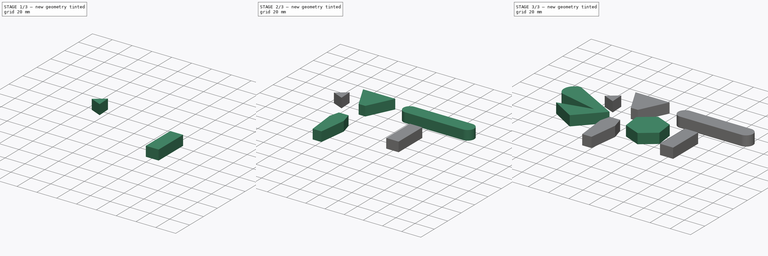
[diagram: build sequence overview — one tinted view per stage of 3, left to right]
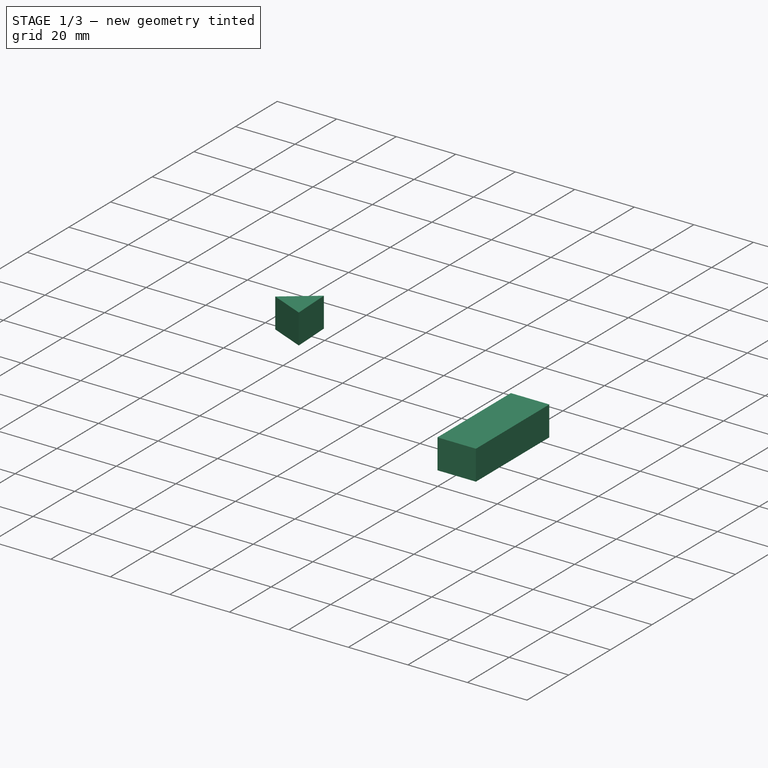
[diagram: stage 1 of 3 — iso view after this stage's code; geometry added in this stage tinted green]
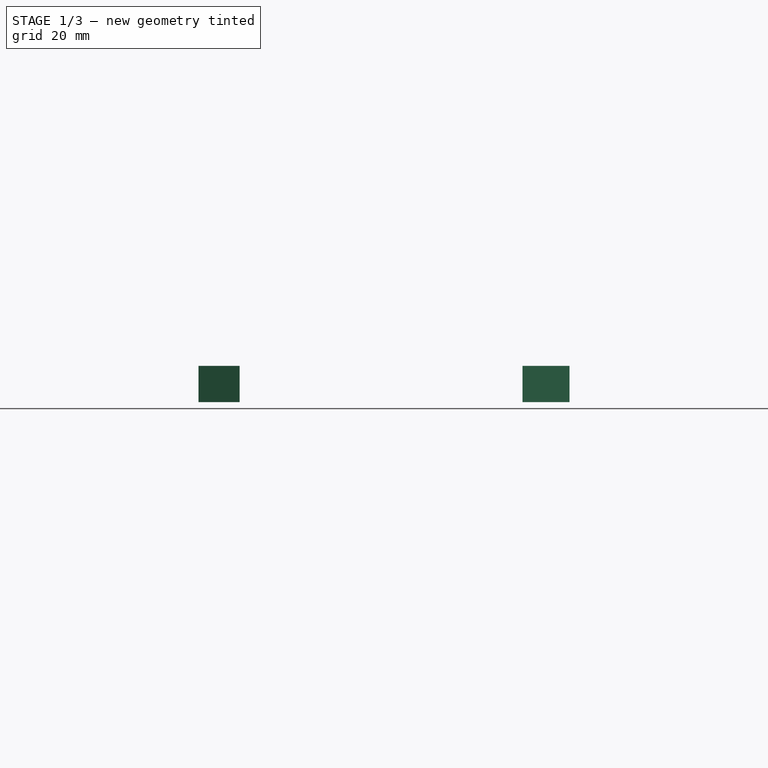
[diagram: stage 1 of 3 — front view after this stage's code; geometry added in this stage tinted green]
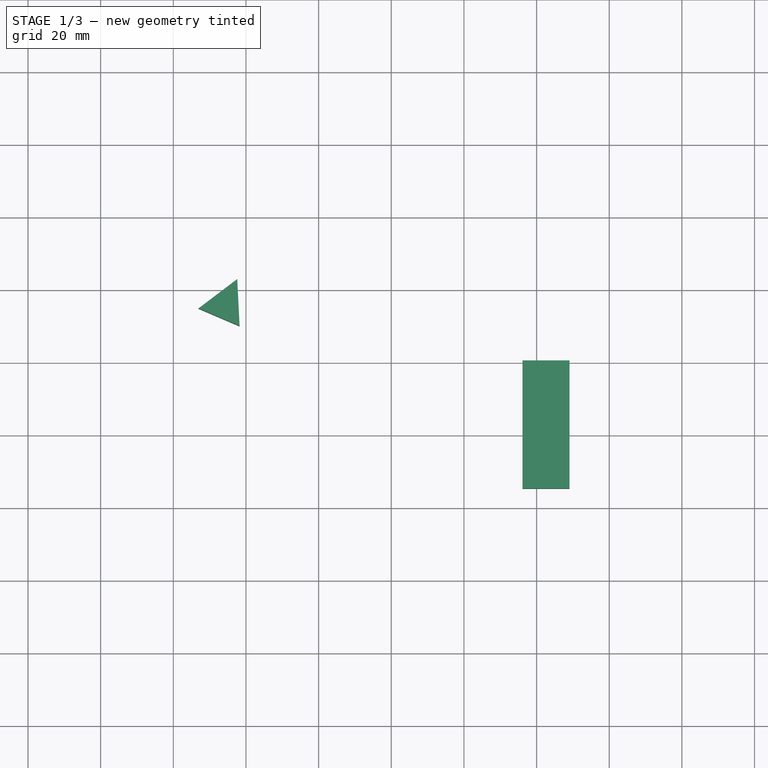
[diagram: stage 1 of 3 — top view after this stage's code; geometry added in this stage tinted green]
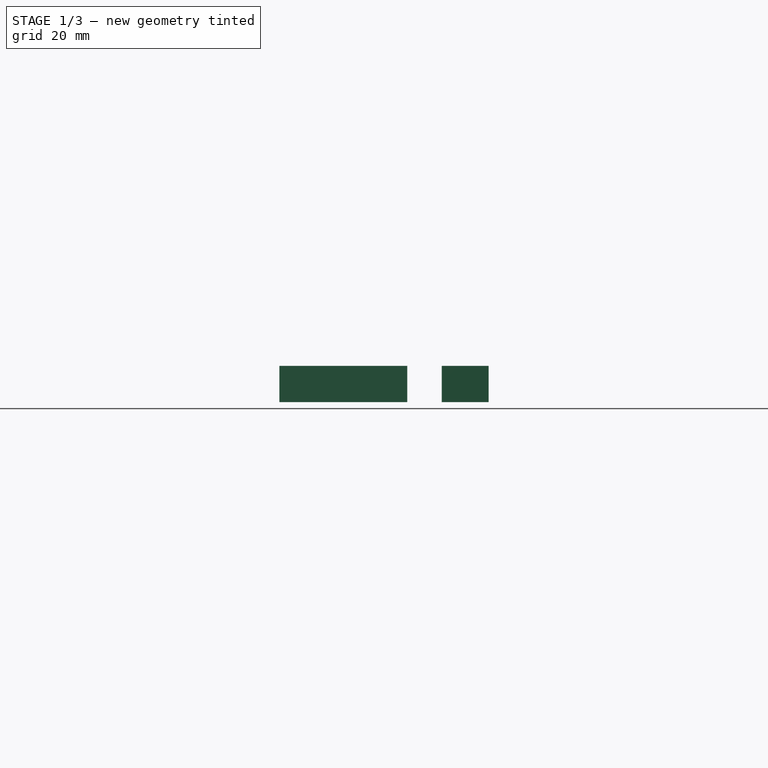
[diagram: stage 1 of 3 — right view after this stage's code; geometry added in this stage tinted green]
FCSTD DOCUMENT  (FreeCAD 0.19R16345 (Git))
Label: Nest_0
License: CreativeCommons Attribution
LicenseURL: http://creativecommons.org/licenses/by/4.0/
objects: Sketcher::SketchObject×7, PartDesign::Pad×7, PartDesign::Body×7
note: 28 computed .brp shape members not serialized (recipe doc carries the construction recipe); baked Part::Feature solids carry a one-line shape summary decoded from their .brp

FEATURE [PartDesign::Body] Body003
  Group = -> [Sketch004,Pad004]
  Origin = -> Origin003
  Tip = -> Pad004
FEATURE [Sketcher::SketchObject] Sketch005
  MapMode = 5
  Support = -> [XY_Plane005]
  sketch-geometry (4):
    g0: LineSegment StartX=56.1333 StartY=20.5902 StartZ=0 EndX=69.0582 EndY=20.5902 EndZ=0
    g1: LineSegment StartX=69.0582 StartY=20.5902 StartZ=0 EndX=69.0582 EndY=-14.6302 EndZ=0
    g2: LineSegment StartX=69.0582 StartY=-14.6302 StartZ=0 EndX=56.1333 EndY=-14.6302 EndZ=0
    g3: LineSegment StartX=56.1333 StartY=-14.6302 StartZ=0 EndX=56.1333 EndY=20.5902 EndZ=0
  constraints (8):
    c: Coincident(g0,g1)
    c: Coincident(g1,g2)
    c: Coincident(g2,g3)
    c: Coincident(g3,g0)
    c: Horizontal(g0)
    c: Horizontal(g2)
    c: Vertical(g1)
    c: Vertical(g3)
FEATURE [PartDesign::Pad] Pad005
  Length = 10
  Length2 = 100
  Profile = -> Sketch005
  Type = 0
FEATURE [PartDesign::Body] Body005
  Group = -> [Sketch005,Pad005]
  Origin = -> Origin005
  Tip = -> Pad005
FEATURE [Sketcher::SketchObject] Sketch006
  MapMode = 5
  Support = -> [XY_Plane006]
  sketch-geometry (3):
    g0: LineSegment StartX=-33.0631 StartY=34.9198 StartZ=0 EndX=-22.4 EndY=42.9979 EndZ=0
    g1: LineSegment StartX=-22.4 StartY=42.9979 StartZ=0 EndX=-21.7538 EndY=30.073 EndZ=0
    g2: LineSegment StartX=-21.7538 StartY=30.073 StartZ=0 EndX=-33.0631 EndY=34.9198 EndZ=0
  constraints (3):
    c: Coincident(g0,g1)
    c: Coincident(g1,g2)
    c: Coincident(g2,g0)
FEATURE [PartDesign::Pad] Pad006
  Length = 10
  Length2 = 100
  Profile = -> Sketch006
  Type = 0
FEATURE [PartDesign::Body] Body006
  Group = -> [Sketch006,Pad006]
  Origin = -> Origin006
  Tip = -> Pad006
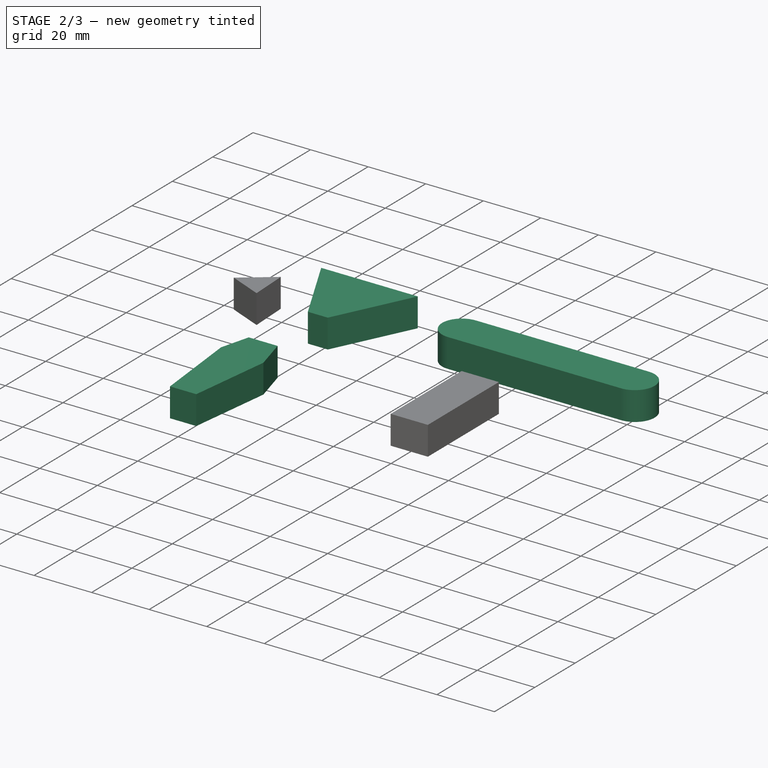
[diagram: stage 2 of 3 — iso view after this stage's code; geometry added in this stage tinted green]
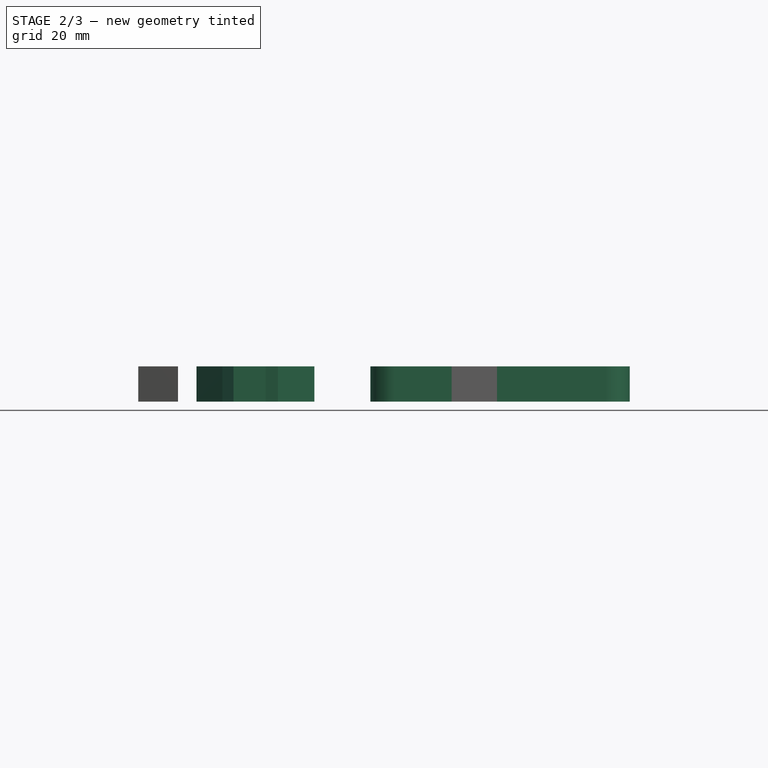
[diagram: stage 2 of 3 — front view after this stage's code; geometry added in this stage tinted green]
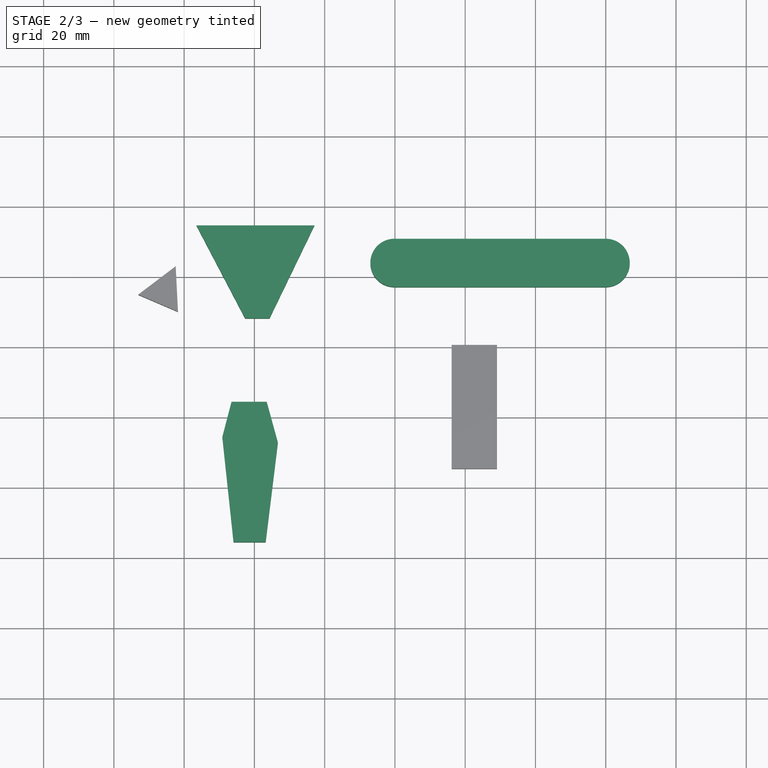
[diagram: stage 2 of 3 — top view after this stage's code; geometry added in this stage tinted green]
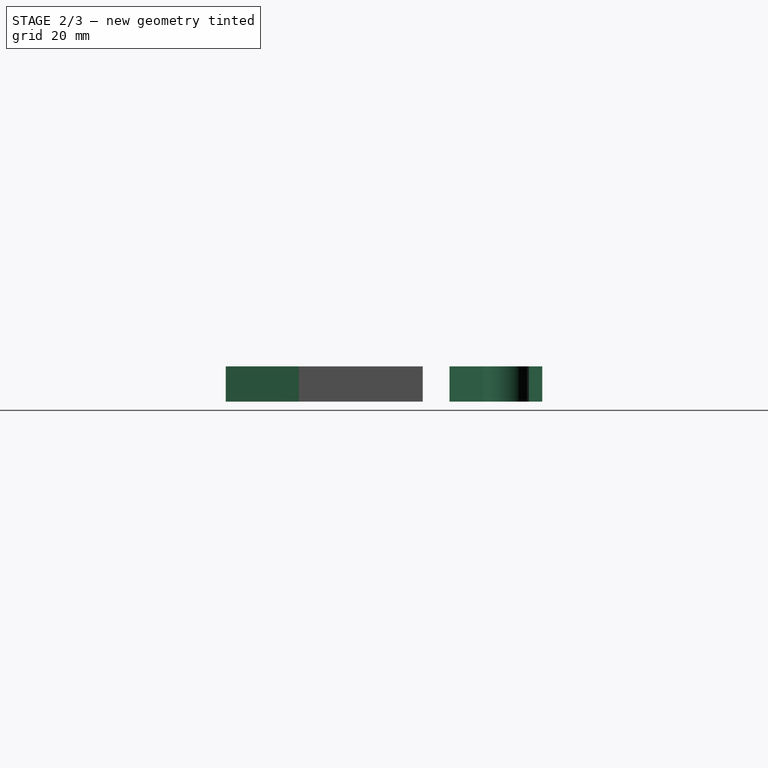
[diagram: stage 2 of 3 — right view after this stage's code; geometry added in this stage tinted green]
FEATURE [PartDesign::Body] Body001
  Group = -> [Sketch001,Pad001]
  Origin = -> Origin001
  Tip = -> Pad001
FEATURE [Sketcher::SketchObject] Sketch002
  MapMode = 5
  Support = -> [XY_Plane002]
  sketch-geometry (4):
    g0: LineSegment StartX=-16.4861 StartY=54.6064 StartZ=0 EndX=-2.62398 EndY=28.1817 EndZ=0
    g1: LineSegment StartX=-2.62398 StartY=28.1817 StartZ=0 EndX=4.30707 EndY=28.1817 EndZ=0
    g2: LineSegment StartX=4.30707 StartY=28.1817 StartZ=0 EndX=17.0862 EndY=54.6064 EndZ=0
    g3: LineSegment StartX=17.0862 StartY=54.6064 StartZ=0 EndX=-16.4861 EndY=54.6064 EndZ=0
  constraints (6):
    c: Coincident(g0,g1)
    c: Horizontal(g1)
    c: Coincident(g1,g2)
    c: Coincident(g2,g3)
    c: Coincident(g3,g0)
    c: Horizontal(g3)
FEATURE [PartDesign::Pad] Pad002
  Length = 10
  Length2 = 100
  Profile = -> Sketch002
  Type = 0
FEATURE [PartDesign::Body] Body002
  Group = -> [Sketch002,Pad002]
  Origin = -> Origin002
  Tip = -> Pad002
FEATURE [Sketcher::SketchObject] Sketch003
  MapMode = 5
  Support = -> [XY_Plane004]
  sketch-geometry (4):
    g0: ArcOfCircle CenterX=39.8673 CenterY=43.9558 CenterZ=0 NormalX=0 NormalY=0 NormalZ=1 AngleXU=0 Radius=6.86841 StartAngle=1.5708 EndAngle=4.71239
    g1: ArcOfCircle CenterX=99.9753 CenterY=43.9558 CenterZ=0 NormalX=0 NormalY=0 NormalZ=1 AngleXU=0 Radius=6.86841 StartAngle=4.71239 EndAngle=7.85398
    g2: LineSegment StartX=39.8673 StartY=37.0874 StartZ=0 EndX=99.9753 EndY=37.0874 EndZ=0
    g3: LineSegment StartX=39.8673 StartY=50.8242 StartZ=0 EndX=99.9753 EndY=50.8242 EndZ=0
  constraints (6):
    c: Tangent(g0,g3) = 1.5708
    c: Tangent(g0,g2) = -1.5708
    c: Tangent(g2,g1) = -1.5708
    c: Tangent(g3,g1) = 1.5708
    c: Horizontal(g2)
    c: Equal(g0,g1)
FEATURE [PartDesign::Pad] Pad003
  Length = 10
  Length2 = 100
  Profile = -> Sketch003
  Type = 0
FEATURE [PartDesign::Body] Body004
  Group = -> [Sketch003,Pad003]
  Origin = -> Origin004
  Tip = -> Pad003
FEATURE [Sketcher::SketchObject] Sketch004
  MapMode = 5
  Support = -> [XY_Plane003]
  sketch-geometry (6):
    g0: LineSegment StartX=-6.51538 StartY=4.41575 StartZ=0 EndX=3.50262 EndY=4.41575 EndZ=0
    g1: LineSegment StartX=3.50262 StartY=4.41575 StartZ=0 EndX=6.69676 EndY=-7.19932 EndZ=0
    g2: LineSegment StartX=6.69676 StartY=-7.19932 StartZ=0 EndX=3.21224 EndY=-35.5111 EndZ=0
    g3: LineSegment StartX=3.21224 StartY=-35.5111 StartZ=0 EndX=-5.93463 EndY=-35.5111 EndZ=0
    g4: LineSegment StartX=-5.93463 StartY=-35.5111 StartZ=0 EndX=-9.12877 EndY=-5.60224 EndZ=0
    g5: LineSegment StartX=-9.12877 StartY=-5.60224 StartZ=0 EndX=-6.51538 EndY=4.41575 EndZ=0
  constraints (8):
    c: Horizontal(g0)
    c: Coincident(g0,g1)
    c: Coincident(g1,g2)
    c: Coincident(g2,g3)
    c: Horizontal(g3)
    c: Coincident(g3,g4)
    c: Coincident(g4,g5)
    c: Coincident(g5,g0)
FEATURE [PartDesign::Pad] Pad004
  Length = 10
  Length2 = 100
  Profile = -> Sketch004
  Type = 0
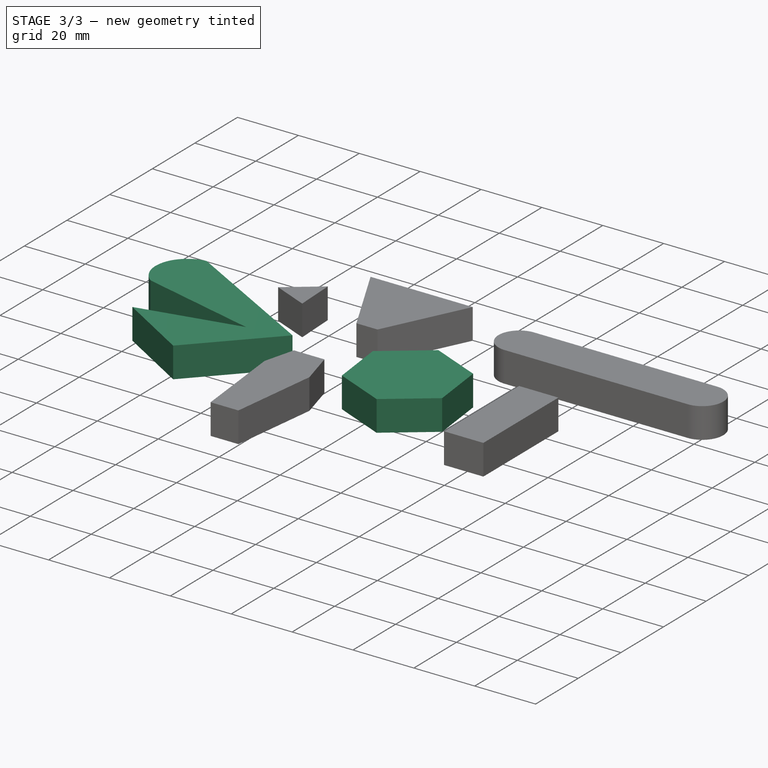
[diagram: stage 3 of 3 — iso view after this stage's code; geometry added in this stage tinted green]
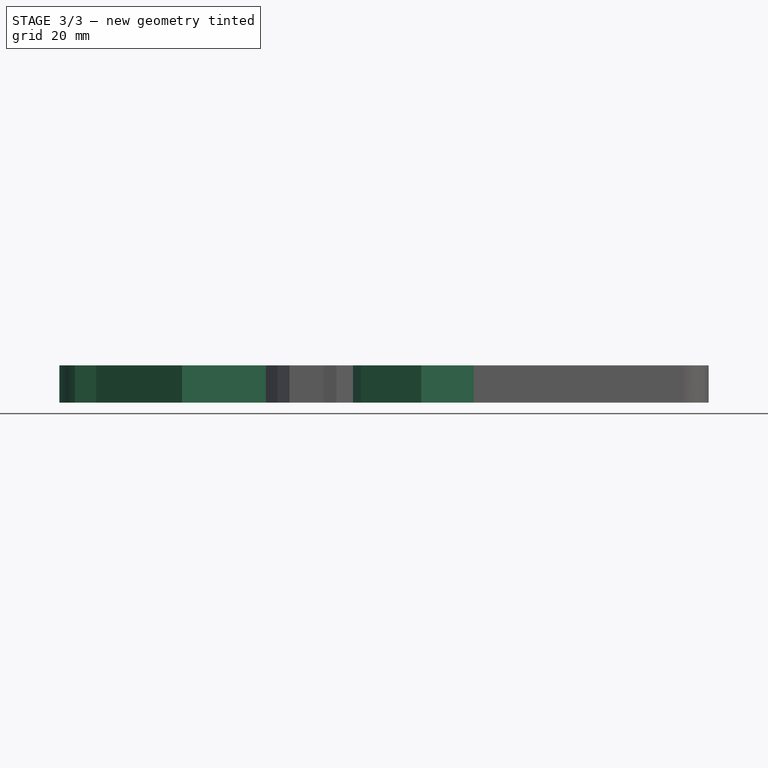
[diagram: stage 3 of 3 — front view after this stage's code; geometry added in this stage tinted green]
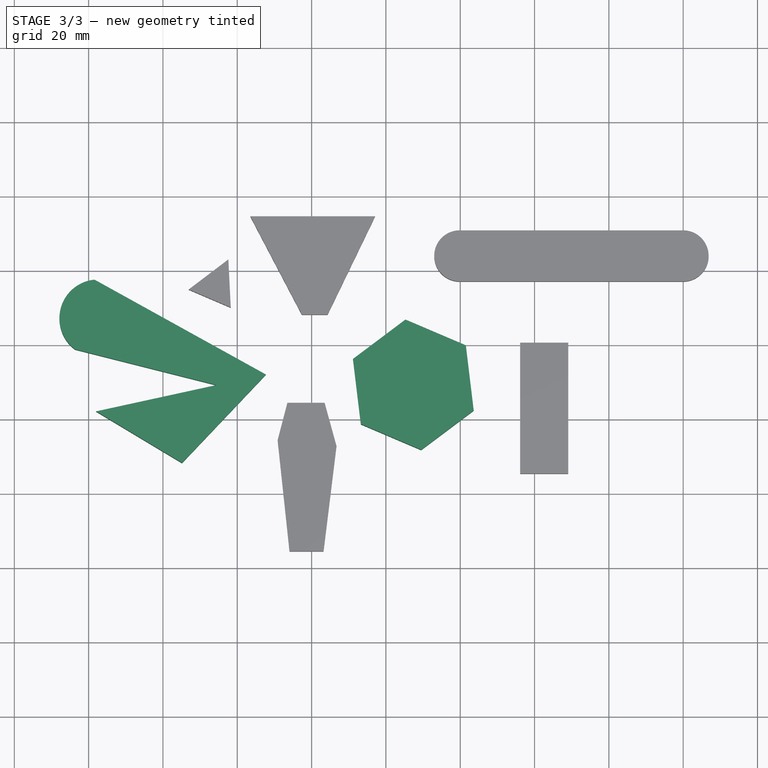
[diagram: stage 3 of 3 — top view after this stage's code; geometry added in this stage tinted green]
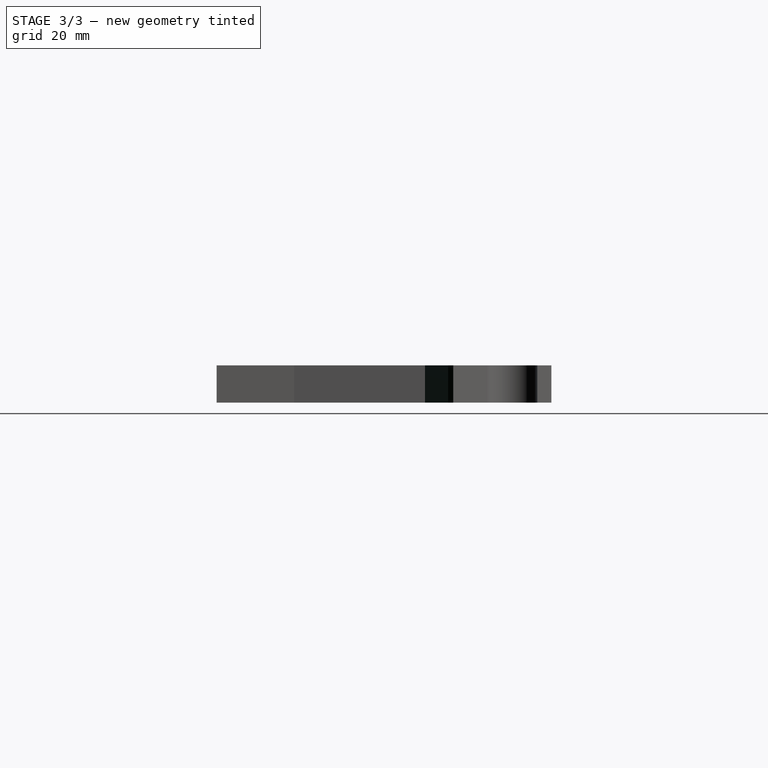
[diagram: stage 3 of 3 — right view after this stage's code; geometry added in this stage tinted green]
FEATURE [Sketcher::SketchObject] Sketch
  MapMode = 5
  Support = -> [XY_Plane]
  sketch-geometry (6):
    g0: ArcOfCircle CenterX=-57.435 CenterY=27.1634 CenterZ=0 NormalX=0 NormalY=0 NormalZ=1 AngleXU=0 Radius=10.4331 StartAngle=1.66427 EndAngle=4.07407
    g1: LineSegment StartX=-58.4089 StartY=37.5509 StartZ=0 EndX=-12.2979 EndY=12.0276 EndZ=0
    g2: LineSegment StartX=-63.6515 StartY=18.7846 StartZ=0 EndX=-25.5947 EndY=9.17918 EndZ=0
    g3: LineSegment StartX=-25.5947 StartY=9.17918 StartZ=0 EndX=-57.9801 EndY=2.10874 EndZ=0
    g4: LineSegment StartX=-12.2979 StartY=12.0276 StartZ=0 EndX=-34.8664 EndY=-11.7602 EndZ=0
    g5: LineSegment StartX=-34.8664 StartY=-11.7602 StartZ=0 EndX=-57.9801 EndY=2.10874 EndZ=0
  constraints (6):
    c: Coincident(g1,g0)
    c: Coincident(g3,g2)
    c: Coincident(g4,g1)
    c: Coincident(g5,g4)
    c: Coincident(g5,g3)
    c: Coincident(g0,g2)
FEATURE [PartDesign::Pad] Pad
  Length = 10
  Length2 = 100
  Profile = -> Sketch
  Type = 0
FEATURE [PartDesign::Body] Body
  Group = -> [Sketch,Pad]
  Origin = -> Origin
  Tip = -> Pad
FEATURE [Sketcher::SketchObject] Sketch001
  MapMode = 5
  Support = -> [XY_Plane001]
  sketch-geometry (7):
    g0: LineSegment StartX=43.6291 StartY=2.35548 StartZ=0 EndX=41.5092 EndY=19.8893 EndZ=0
    g1: LineSegment StartX=41.5092 StartY=19.8893 StartZ=0 EndX=25.2645 EndY=26.8204 EndZ=0
    g2: LineSegment StartX=25.2645 StartY=26.8204 StartZ=0 EndX=11.1397 EndY=16.2176 EndZ=0
    g3: LineSegment StartX=11.1397 StartY=16.2176 StartZ=0 EndX=13.2596 EndY=-1.31623 EndZ=0
    g4: LineSegment StartX=13.2596 StartY=-1.31623 StartZ=0 EndX=29.5043 EndY=-8.24728 EndZ=0
    g5: LineSegment StartX=29.5043 StartY=-8.24728 StartZ=0 EndX=43.6291 EndY=2.35548 EndZ=0
    g6: Circle [constr] CenterX=27.3844 CenterY=9.28654 CenterZ=0 NormalX=0 NormalY=0 NormalZ=1 AngleXU=0 Radius=17.6615
  constraints (13):
    c: Coincident(g0,g1)
    c: Coincident(g1,g2)
    c: Coincident(g2,g3)
    c: Coincident(g3,g4)
    c: Coincident(g4,g5)
    c: Coincident(g5,g0)
    c: Equal(g0, g1-g5) x5
    c: PointOnObject(g0,g6)
    c: PointOnObject(g1,g6)
    c: PointOnObject(g2,g6)
    c: PointOnObject(g3,g6)
    c: PointOnObject(g4,g6)
    c: PointOnObject(g5,g6)
FEATURE [PartDesign::Pad] Pad001
  Length = 10
  Length2 = 100
  Profile = -> Sketch001
  Type = 0
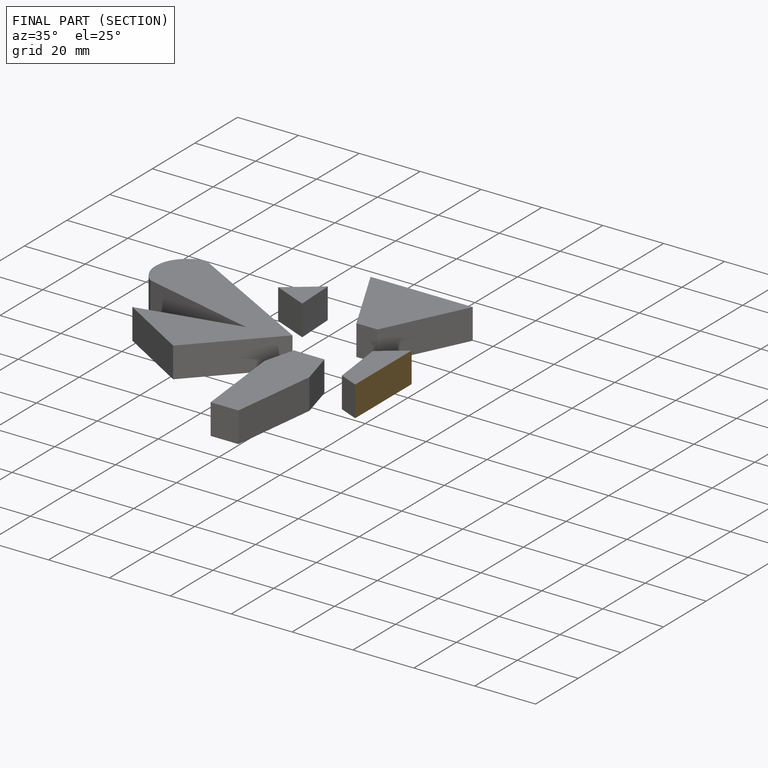
[diagram: finished part — half-section view (interior)]
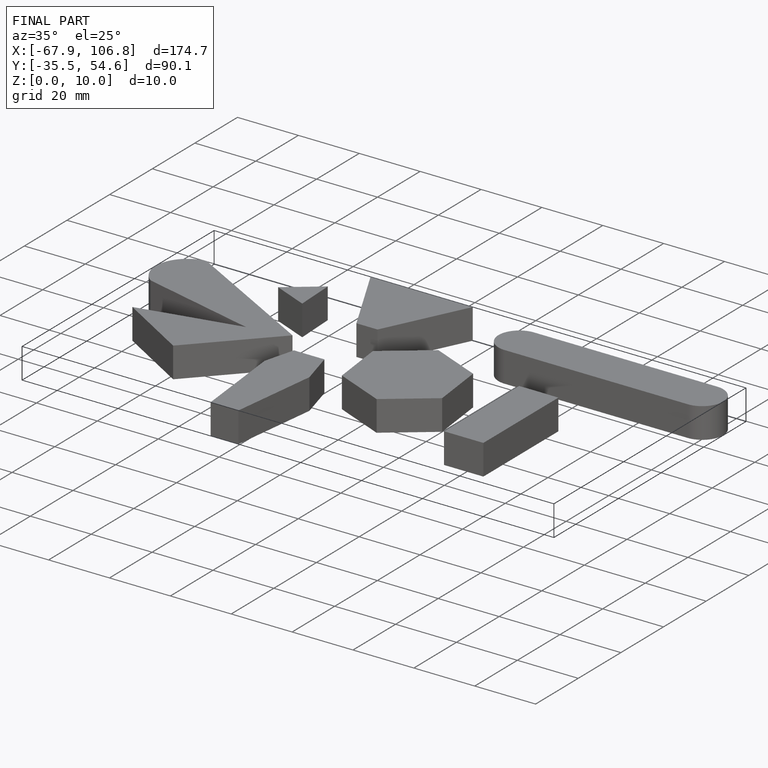
[diagram: finished part — iso view with bounding-box wireframe]
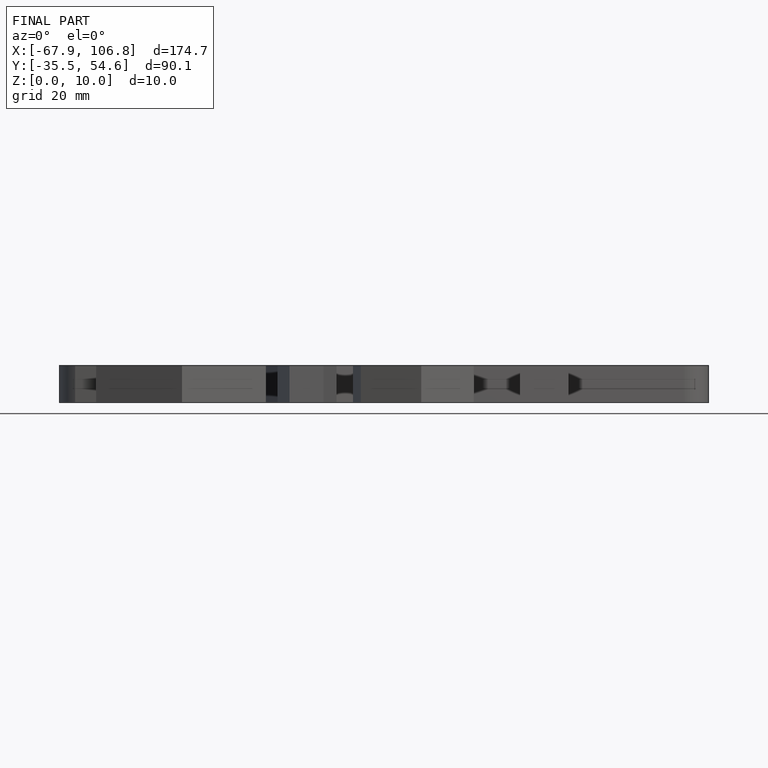
[diagram: finished part — front view with bounding-box wireframe]
